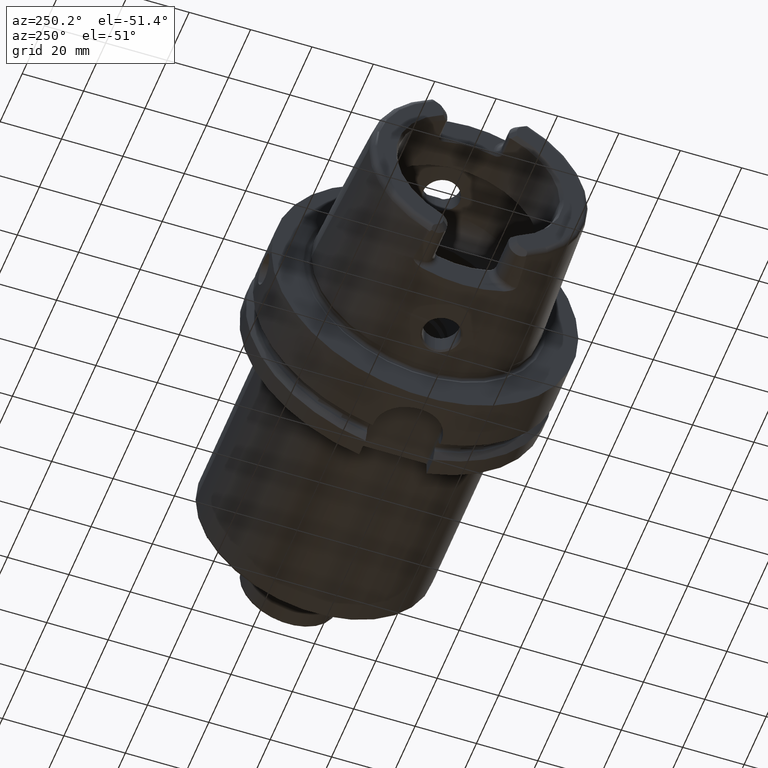
[diagram: clean part render]
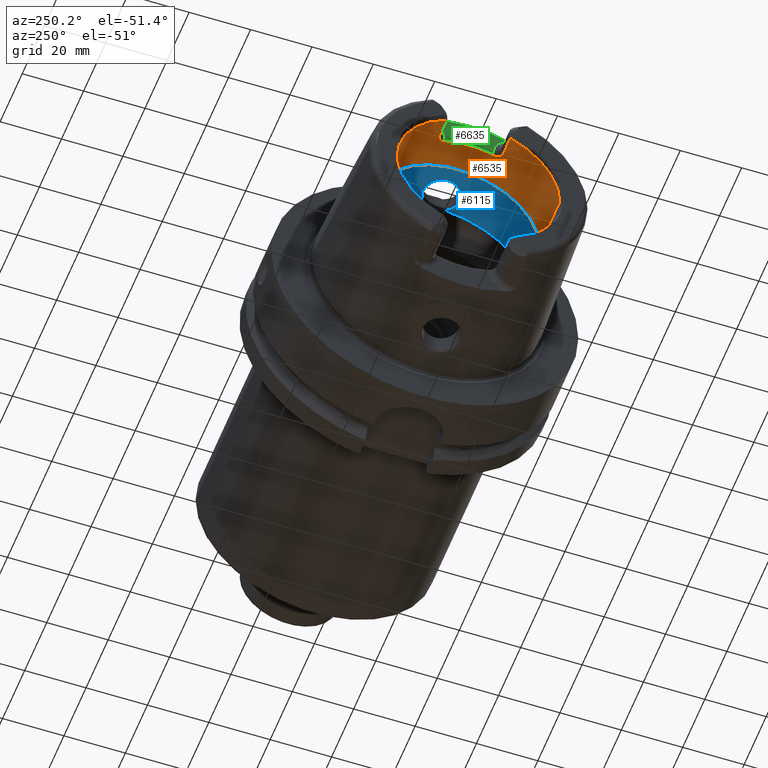
[diagram: same view with three faces highlighted in distinct colors, each labeled with its STEP entity id]
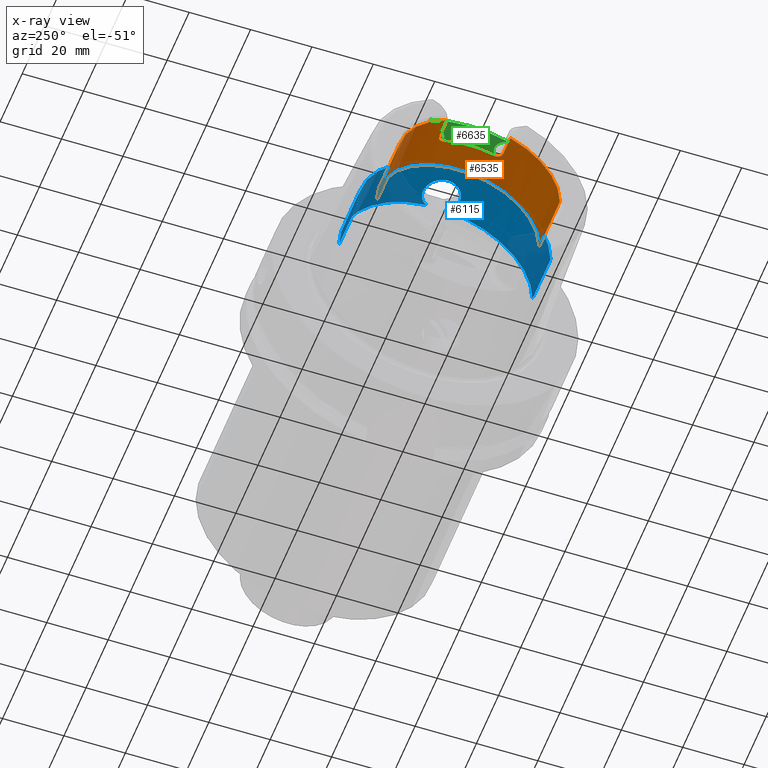
[diagram: x-ray of the same camera — body ghosted, the three highlighted faces saturated]
A machine part, auxiliary view with three faces highlighted in distinct colors.
The next image is the same camera in x-ray (body ghosted, the three faces saturated) — at least one of them is partly hidden behind the body in this view.
Their STEP definitions:

[orange] entity #6535 — the highlighted cylindrical surface (partial cylindrical patch) has radius 26.5 mm, axis along (1, 0, 0).
#165=CARTESIAN_POINT('',(-4.85E1,1.051E1,2.432673220965E1));
#167=CARTESIAN_POINT('',(-4.85E1,0.E0,0.E0));
#168=DIRECTION('',(1.E0,0.E0,0.E0));
#169=DIRECTION('',(0.E0,1.E0,0.E0));
#170=AXIS2_PLACEMENT_3D('',#167,#168,#169);
#187=CARTESIAN_POINT('',(-4.85E1,0.E0,0.E0));
#188=DIRECTION('',(1.E0,0.E0,0.E0));
#189=DIRECTION('',(0.E0,-3.966037735849E-1,9.179898947038E-1));
#190=AXIS2_PLACEMENT_3D('',#187,#188,#189);
#192=CARTESIAN_POINT('',(-4.85E1,-1.051E1,2.432673220965E1));
#513=DIRECTION('',(-1.E0,0.E0,0.E0));
#514=VECTOR('',#513,1.849662432703E1);
#515=CARTESIAN_POINT('',(-3.000337567297E1,2.65E1,0.E0));
#516=LINE('',#515,#514);
#522=DIRECTION('',(-1.E0,0.E0,0.E0));
#523=VECTOR('',#522,1.849662432703E1);
#524=CARTESIAN_POINT('',(-3.000337567297E1,-2.65E1,0.E0));
#525=LINE('',#524,#523);
#2610=DIRECTION('',(1.E0,0.E0,0.E0));
#2611=VECTOR('',#2610,6.380229667746E0);
#2612=CARTESIAN_POINT('',(-4.838022966775E1,1.039022966775E1,2.437812805470E1));
#2613=LINE('',#2612,#2611);
#2614=CARTESIAN_POINT('',(-3.971132486541E1,8.01E0,2.526044140549E1));
#2615=CARTESIAN_POINT('',(-3.970878365387E1,8.120563234658E0,2.522538218006E1));
#2616=CARTESIAN_POINT('',(-3.971906599640E1,8.340498761E0,2.515406323082E1));
#2617=CARTESIAN_POINT('',(-3.978267622202E1,8.672586520936E0,2.504149237513E1));
#2618=CARTESIAN_POINT('',(-3.989268945815E1,8.989467647893E0,2.492938353432E1));
#2619=CARTESIAN_POINT('',(-4.004052322956E1,9.277750297847E0,2.482340953473E1));
#2620=CARTESIAN_POINT('',(-4.022199090024E1,9.537479373845E0,2.472468297046E1));
#2621=CARTESIAN_POINT('',(-4.043924040036E1,9.773195748073E0,2.463237051391E1));
#2622=CARTESIAN_POINT('',(-4.069196362011E1,9.980705213938E0,2.454892857931E1));
#2623=CARTESIAN_POINT('',(-4.098453186625E1,1.015759575717E1,2.447617541728E1));
#2624=CARTESIAN_POINT('',(-4.132143240488E1,1.029570459017E1,2.441829554688E1));
#2625=CARTESIAN_POINT('',(-4.167918985613E1,1.037618705973E1,2.438412368561E1));
#2626=CARTESIAN_POINT('',(-4.189481839478E1,1.039022966775E1,2.437812805470E1));
#2627=CARTESIAN_POINT('',(-4.2E1,1.039022966775E1,2.437812805470E1));
#2629=CARTESIAN_POINT('',(-3.971132486541E1,-8.01E0,2.526044140549E1));
#2630=CARTESIAN_POINT('',(-3.971132486541E1,-7.271271578955E0,
2.549468967366E1));
#2631=CARTESIAN_POINT('',(-3.971132486546E1,-5.773250992792E0,
2.589833317849E1));
#2632=CARTESIAN_POINT('',(-3.971132486544E1,-3.481810319461E0,
2.630458298809E1));
#2633=CARTESIAN_POINT('',(-3.971132486544E1,-1.163586982585E0,
2.650849211583E1));
#2634=CARTESIAN_POINT('',(-3.971132486544E1,1.163586982585E0,2.650849211583E1));
#2635=CARTESIAN_POINT('',(-3.971132486544E1,3.481810319461E0,2.630458298809E1));
#2636=CARTESIAN_POINT('',(-3.971132486546E1,5.773250992791E0,2.589833317849E1));
#2637=CARTESIAN_POINT('',(-3.971132486541E1,7.271271578958E0,2.549468967366E1));
#2638=CARTESIAN_POINT('',(-3.971132486541E1,8.01E0,2.526044140549E1));
#2640=CARTESIAN_POINT('',(-4.2E1,-1.039022966775E1,2.437812805470E1));
#2641=CARTESIAN_POINT('',(-4.189375760304E1,-1.039022966775E1,
2.437812805470E1));
#2642=CARTESIAN_POINT('',(-4.167635124759E1,-1.037592175927E1,
2.438423721529E1));
#2643=CARTESIAN_POINT('',(-4.131623052643E1,-1.029415408513E1,
2.441895189414E1));
#2644=CARTESIAN_POINT('',(-4.097947032639E1,-1.015497495082E1,
2.447726388108E1));
#2645=CARTESIAN_POINT('',(-4.068903934051E1,-9.978495762119E0,
2.454982411868E1));
#2646=CARTESIAN_POINT('',(-4.043805179144E1,-9.771970406757E0,
2.463285308238E1));
#2647=CARTESIAN_POINT('',(-4.022178538202E1,-9.537157318169E0,
2.472480442904E1));
#2648=CARTESIAN_POINT('',(-4.004048499348E1,-9.277715471543E0,
2.482342368645E1));
#2649=CARTESIAN_POINT('',(-3.989237648633E1,-8.988811706632E0,
2.492962282131E1));
#2650=CARTESIAN_POINT('',(-3.978230284625E1,-8.671343229942E0,
2.504192722240E1));
#2651=CARTESIAN_POINT('',(-3.971884880625E1,-8.338547582645E0,
2.515470883480E1));
#2652=CARTESIAN_POINT('',(-3.970880260289E1,-8.119738798873E0,
2.522564360584E1));
#2653=CARTESIAN_POINT('',(-3.971132486541E1,-8.01E0,2.526044140549E1));
#2655=DIRECTION('',(1.E0,0.E0,0.E0));
#2656=VECTOR('',#2655,6.380229667746E0);
#2657=CARTESIAN_POINT('',(-4.838022966775E1,-1.039022966775E1,
2.437812805470E1));
#2658=LINE('',#2657,#2656);
#2659=CARTESIAN_POINT('',(-4.838022966775E1,-1.039022966775E1,
2.437812805470E1));
#2660=CARTESIAN_POINT('',(-4.842017594144E1,-1.043017594144E1,
2.436110250799E1));
#2661=CARTESIAN_POINT('',(-4.846009940760E1,-1.047009940760E1,
2.434397066250E1));
#2662=CARTESIAN_POINT('',(-4.85E1,-1.051E1,2.432673220965E1));
#2664=CARTESIAN_POINT('',(-3.000337567297E1,0.E0,0.E0));
#2665=DIRECTION('',(1.E0,0.E0,0.E0));
#2666=DIRECTION('',(0.E0,1.E0,0.E0));
#2667=AXIS2_PLACEMENT_3D('',#2664,#2665,#2666);
#2669=CARTESIAN_POINT('',(-4.85E1,1.051E1,2.432673220965E1));
#2670=CARTESIAN_POINT('',(-4.846009940760E1,1.047009940760E1,2.434397066250E1));
#2671=CARTESIAN_POINT('',(-4.842017594144E1,1.043017594144E1,2.436110250799E1));
#2672=CARTESIAN_POINT('',(-4.838022966775E1,1.039022966775E1,2.437812805470E1));
#2875=CARTESIAN_POINT('',(-3.000337567297E1,2.65E1,0.E0));
#2876=VERTEX_POINT('',#2875);
#2877=CARTESIAN_POINT('',(-4.85E1,2.65E1,0.E0));
#2878=VERTEX_POINT('',#2877);
#2887=CARTESIAN_POINT('',(-3.000337567297E1,-2.65E1,0.E0));
#2888=VERTEX_POINT('',#2887);
#2889=CARTESIAN_POINT('',(-4.85E1,-2.65E1,0.E0));
#2890=VERTEX_POINT('',#2889);
#2931=VERTEX_POINT('',#165);
#2946=VERTEX_POINT('',#192);
#2959=CARTESIAN_POINT('',(-4.2E1,1.039022966775E1,2.437812805470E1));
#2960=VERTEX_POINT('',#2959);
#2961=CARTESIAN_POINT('',(-3.971132486541E1,8.01E0,2.526044140549E1));
#2962=VERTEX_POINT('',#2961);
#2963=CARTESIAN_POINT('',(-4.2E1,-1.039022966775E1,2.437812805470E1));
#2964=VERTEX_POINT('',#2963);
#2965=CARTESIAN_POINT('',(-3.971132486541E1,-8.01E0,2.526044140549E1));
#2966=VERTEX_POINT('',#2965);
#2967=CARTESIAN_POINT('',(-4.838022966775E1,1.039022966775E1,2.437812805470E1));
#2968=VERTEX_POINT('',#2967);
#2969=CARTESIAN_POINT('',(-4.838022966775E1,-1.039022966775E1,
2.437812805470E1));
#2970=VERTEX_POINT('',#2969);
#6511=CARTESIAN_POINT('',(-5.3125E1,0.E0,0.E0));
#6512=DIRECTION('',(1.E0,0.E0,0.E0));
#6513=DIRECTION('',(0.E0,-1.E0,0.E0));
#6514=AXIS2_PLACEMENT_3D('',#6511,#6512,#6513);
#6515=CYLINDRICAL_SURFACE('',#6514,2.65E1);
#6516=ORIENTED_EDGE('',*,*,#3527,.T.);
#6518=ORIENTED_EDGE('',*,*,#6517,.F.);
#6520=ORIENTED_EDGE('',*,*,#6519,.F.);
#6522=ORIENTED_EDGE('',*,*,#6521,.F.);
#6524=ORIENTED_EDGE('',*,*,#6523,.F.);
#6526=ORIENTED_EDGE('',*,*,#6525,.T.);
#6527=ORIENTED_EDGE('',*,*,#3492,.T.);
#6528=ORIENTED_EDGE('',*,*,#3754,.F.);
#6529=ORIENTED_EDGE('',*,*,#6491,.F.);
#6530=ORIENTED_EDGE('',*,*,#3750,.T.);
#6531=ORIENTED_EDGE('',*,*,#3476,.T.);
#6532=ORIENTED_EDGE('',*,*,#3507,.T.);
#6533=EDGE_LOOP('',(#6516,#6518,#6520,#6522,#6524,#6526,#6527,#6528,#6529,#6530,
#6531,#6532));
#6534=FACE_OUTER_BOUND('',#6533,.F.);
#6535=ADVANCED_FACE('',(#6534),#6515,.F.);
#171=CIRCLE('',#170,2.65E1);
#191=CIRCLE('',#190,2.65E1);
#2628=B_SPLINE_CURVE_WITH_KNOTS('',3,(#2614,#2615,#2616,#2617,#2618,#2619,#2620,
#2621,#2622,#2623,#2624,#2625,#2626,#2627),.UNSPECIFIED.,.F.,.F.,(4,1,1,1,1,1,1,
1,1,1,1,4),(0.E0,9.090909090909E-2,1.818181818182E-1,2.727272727273E-1,
3.636363636364E-1,4.545454545455E-1,5.454545454545E-1,6.363636363636E-1,
7.272727272727E-1,8.181818181818E-1,9.090909090909E-1,1.E0),.UNSPECIFIED.);
#2639=B_SPLINE_CURVE_WITH_KNOTS('',3,(#2629,#2630,#2631,#2632,#2633,#2634,#2635,
#2636,#2637,#2638),.UNSPECIFIED.,.F.,.F.,(4,1,1,1,1,1,1,4),(0.E0,
1.428571428571E-1,2.857142857143E-1,4.285714285714E-1,5.714285714286E-1,
7.142857142857E-1,8.571428571429E-1,1.E0),.UNSPECIFIED.);
#2654=B_SPLINE_CURVE_WITH_KNOTS('',3,(#2640,#2641,#2642,#2643,#2644,#2645,#2646,
#2647,#2648,#2649,#2650,#2651,#2652,#2653),.UNSPECIFIED.,.F.,.F.,(4,1,1,1,1,1,1,
1,1,1,1,4),(0.E0,9.090909090909E-2,1.818181818182E-1,2.727272727273E-1,
3.636363636364E-1,4.545454545455E-1,5.454545454545E-1,6.363636363636E-1,
7.272727272727E-1,8.181818181818E-1,9.090909090909E-1,1.E0),.UNSPECIFIED.);
#2663=B_SPLINE_CURVE_WITH_KNOTS('',3,(#2659,#2660,#2661,#2662),.UNSPECIFIED.,
.F.,.F.,(4,4),(0.E0,1.E0),.UNSPECIFIED.);
#2668=CIRCLE('',#2667,2.65E1);
#2673=B_SPLINE_CURVE_WITH_KNOTS('',3,(#2669,#2670,#2671,#2672),.UNSPECIFIED.,
.F.,.F.,(4,4),(0.E0,1.E0),.UNSPECIFIED.);
#3476=EDGE_CURVE('',#2878,#2931,#171,.T.);
#3492=EDGE_CURVE('',#2946,#2890,#191,.T.);
#3507=EDGE_CURVE('',#2931,#2968,#2673,.T.);
#3527=EDGE_CURVE('',#2968,#2960,#2613,.T.);
#3750=EDGE_CURVE('',#2876,#2878,#516,.T.);
#3754=EDGE_CURVE('',#2888,#2890,#525,.T.);
#6491=EDGE_CURVE('',#2876,#2888,#2668,.T.);
#6517=EDGE_CURVE('',#2962,#2960,#2628,.T.);
#6519=EDGE_CURVE('',#2966,#2962,#2639,.T.);
#6521=EDGE_CURVE('',#2964,#2966,#2654,.T.);
#6523=EDGE_CURVE('',#2970,#2964,#2658,.T.);
#6525=EDGE_CURVE('',#2970,#2946,#2663,.T.);

[blue] entity #6115 — the highlighted cylindrical surface (partial cylindrical patch) has radius 31.5 mm, axis along (1, 0, 0).
#2203=CARTESIAN_POINT('',(-9.846794344809E0,3.073185883624E0,3.134972932139E1));
#2205=CARTESIAN_POINT('',(-9.846794344809E0,-3.073185883624E0,
3.134972932139E1));
#2219=CARTESIAN_POINT('',(-9.846794344809E0,3.073185883624E0,3.134972932139E1));
#2220=CARTESIAN_POINT('',(-9.979350610583E0,3.295460007053E0,3.132793998818E1));
#2221=CARTESIAN_POINT('',(-1.027063887730E1,3.719249728918E0,3.128166137702E1));
#2222=CARTESIAN_POINT('',(-1.079035808135E1,4.298920478732E0,3.120689190392E1));
#2223=CARTESIAN_POINT('',(-1.137898274965E1,4.805041081809E0,3.113254787077E1));
#2224=CARTESIAN_POINT('',(-1.202658779818E1,5.230450418473E0,3.106351678434E1));
#2225=CARTESIAN_POINT('',(-1.271973952812E1,5.567575114105E0,3.100453126817E1));
#2226=CARTESIAN_POINT('',(-1.345035493347E1,5.813488696578E0,3.095911024256E1));
#2227=CARTESIAN_POINT('',(-1.420764120587E1,5.964169161635E0,3.093027187856E1));
#2228=CARTESIAN_POINT('',(-1.497984446875E1,6.016521870398E0,3.092007259785E1));
#2229=CARTESIAN_POINT('',(-1.575309935594E1,5.969543750814E0,3.092922961197E1));
#2230=CARTESIAN_POINT('',(-1.652541066125E1,5.820717381311E0,3.095775345043E1));
#2231=CARTESIAN_POINT('',(-1.727341934717E1,5.571094163642E0,3.100391709528E1));
#2232=CARTESIAN_POINT('',(-1.797719195757E1,5.228690177102E0,3.106382935769E1));
#2233=CARTESIAN_POINT('',(-1.863207171596E1,4.797562142056E0,3.113375842146E1));
#2234=CARTESIAN_POINT('',(-1.923624043330E1,4.274224967480E0,3.121040427516E1));
#2235=CARTESIAN_POINT('',(-1.976613927382E1,3.673557002686E0,3.128721124755E1));
#2236=CARTESIAN_POINT('',(-2.020637808011E1,3.016563255921E0,3.135771603394E1));
#2237=CARTESIAN_POINT('',(-2.055582787998E1,2.311076998962E0,3.141795380196E1));
#2238=CARTESIAN_POINT('',(-2.081257397864E1,1.557663843048E0,3.146462805191E1));
#2239=CARTESIAN_POINT('',(-2.096662575255E1,7.779183163064E-1,
3.149361665994E1));
#2240=CARTESIAN_POINT('',(-2.1E1,2.599995876471E-1,3.15E1));
#2241=CARTESIAN_POINT('',(-2.1E1,0.E0,3.15E1));
#2243=CARTESIAN_POINT('',(-9.846794344809E0,0.E0,0.E0));
#2244=DIRECTION('',(1.E0,0.E0,0.E0));
#2245=DIRECTION('',(0.E0,1.E0,0.E0));
#2246=AXIS2_PLACEMENT_3D('',#2243,#2244,#2245);
#2248=CARTESIAN_POINT('',(-9.846794344809E0,0.E0,0.E0));
#2249=DIRECTION('',(1.E0,0.E0,0.E0));
#2250=DIRECTION('',(0.E0,-9.756145662299E-2,9.952295022665E-1));
#2251=AXIS2_PLACEMENT_3D('',#2248,#2249,#2250);
#2253=CARTESIAN_POINT('',(-2.1E1,0.E0,3.15E1));
#2254=CARTESIAN_POINT('',(-2.1E1,-2.571227322628E-1,3.15E1));
#2255=CARTESIAN_POINT('',(-2.096736472421E1,-7.693984126219E-1,
3.149375838501E1));
#2256=CARTESIAN_POINT('',(-2.081659080202E1,-1.541049857093E0,
3.146537963405E1));
#2257=CARTESIAN_POINT('',(-2.056550243220E1,-2.286682308644E0,
3.141968549161E1));
#2258=CARTESIAN_POINT('',(-2.022340587255E1,-2.986151195866E0,
3.136058293097E1));
#2259=CARTESIAN_POINT('',(-1.979326828629E1,-3.637340617479E0,
3.129140992251E1));
#2260=CARTESIAN_POINT('',(-1.927478905529E1,-4.235071698102E0,
3.121573223434E1));
#2261=CARTESIAN_POINT('',(-1.868247740736E1,-4.758599460883E0,
3.113974969594E1));
#2262=CARTESIAN_POINT('',(-1.803686661027E1,-5.194005287447E0,
3.106967109408E1));
#2263=CARTESIAN_POINT('',(-1.734161583992E1,-5.542612510908E0,
3.100904668501E1));
#2264=CARTESIAN_POINT('',(-1.659831672384E1,-5.801097428712E0,
3.096145823760E1));
#2265=CARTESIAN_POINT('',(-1.582796267308E1,-5.959654019058E0,
3.093114785940E1));
#2266=CARTESIAN_POINT('',(-1.505461105168E1,-6.016295452388E0,
3.092011677740E1));
#2267=CARTESIAN_POINT('',(-1.428037054876E1,-5.973681036842E0,
3.092842594800E1));
#2268=CARTESIAN_POINT('',(-1.350797364848E1,-5.829331845562E0,
3.095612333536E1));
#2269=CARTESIAN_POINT('',(-1.275967231567E1,-5.584336729774E0,
3.100151619127E1));
#2270=CARTESIAN_POINT('',(-1.205825931241E1,-5.248465876117E0,
3.106046672590E1));
#2271=CARTESIAN_POINT('',(-1.140515180586E1,-4.825059400574E0,
3.112945635419E1));
#2272=CARTESIAN_POINT('',(-1.080442776173E1,-4.313579447853E0,
3.120492076547E1));
#2273=CARTESIAN_POINT('',(-1.027427619122E1,-3.724621952008E0,
3.128107616940E1));
#2274=CARTESIAN_POINT('',(-9.980265351482E0,-3.296993870656E0,
3.132778962490E1));
#2275=CARTESIAN_POINT('',(-9.846794344809E0,-3.073185883624E0,
3.134972932139E1));
#2330=DIRECTION('',(-1.E0,0.E0,0.E0));
#2331=VECTOR('',#2330,1.640380457843E1);
#2332=CARTESIAN_POINT('',(-9.846794344809E0,-3.15E1,0.E0));
#2333=LINE('',#2332,#2331);
#2334=DIRECTION('',(-1.E0,0.E0,0.E0));
#2335=VECTOR('',#2334,1.640380457843E1);
#2336=CARTESIAN_POINT('',(-9.846794344809E0,3.15E1,0.E0));
#2337=LINE('',#2336,#2335);
#2587=CARTESIAN_POINT('',(-2.625059892324E1,0.E0,0.E0));
#2588=DIRECTION('',(1.E0,0.E0,0.E0));
#2589=DIRECTION('',(0.E0,1.E0,0.E0));
#2590=AXIS2_PLACEMENT_3D('',#2587,#2588,#2589);
#2869=CARTESIAN_POINT('',(-9.846794344809E0,3.15E1,0.E0));
#2870=VERTEX_POINT('',#2869);
#2871=CARTESIAN_POINT('',(-2.625059892324E1,3.15E1,0.E0));
#2872=VERTEX_POINT('',#2871);
#2881=CARTESIAN_POINT('',(-9.846794344809E0,-3.15E1,0.E0));
#2882=VERTEX_POINT('',#2881);
#2883=CARTESIAN_POINT('',(-2.625059892324E1,-3.15E1,0.E0));
#2884=VERTEX_POINT('',#2883);
#3049=VERTEX_POINT('',#2203);
#3050=VERTEX_POINT('',#2205);
#3051=VERTEX_POINT('',#2241);
#6098=CARTESIAN_POINT('',(-5.3125E1,0.E0,0.E0));
#6099=DIRECTION('',(1.E0,0.E0,0.E0));
#6100=DIRECTION('',(0.E0,-1.E0,0.E0));
#6101=AXIS2_PLACEMENT_3D('',#6098,#6099,#6100);
#6102=CYLINDRICAL_SURFACE('',#6101,3.15E1);
#6103=ORIENTED_EDGE('',*,*,#6057,.F.);
#6104=ORIENTED_EDGE('',*,*,#6093,.F.);
#6106=ORIENTED_EDGE('',*,*,#6105,.T.);
#6108=ORIENTED_EDGE('',*,*,#6107,.T.);
#6110=ORIENTED_EDGE('',*,*,#6109,.F.);
#6111=ORIENTED_EDGE('',*,*,#6085,.F.);
#6112=ORIENTED_EDGE('',*,*,#5779,.F.);
#6113=EDGE_LOOP('',(#6103,#6104,#6106,#6108,#6110,#6111,#6112));
#6114=FACE_OUTER_BOUND('',#6113,.F.);
#6115=ADVANCED_FACE('',(#6114),#6102,.F.);
#2242=B_SPLINE_CURVE_WITH_KNOTS('',3,(#2219,#2220,#2221,#2222,#2223,#2224,#2225,
#2226,#2227,#2228,#2229,#2230,#2231,#2232,#2233,#2234,#2235,#2236,#2237,#2238,
#2239,#2240,#2241),.UNSPECIFIED.,.F.,.F.,(4,1,1,1,1,1,1,1,1,1,1,1,1,1,1,1,1,1,1,
1,4),(0.E0,5.E-2,1.E-1,1.5E-1,2.E-1,2.5E-1,3.E-1,3.5E-1,4.E-1,4.5E-1,5.E-1,
5.5E-1,6.E-1,6.5E-1,7.E-1,7.5E-1,8.E-1,8.5E-1,9.E-1,9.5E-1,1.E0),.UNSPECIFIED.);
#2247=CIRCLE('',#2246,3.15E1);
#2252=CIRCLE('',#2251,3.15E1);
#2276=B_SPLINE_CURVE_WITH_KNOTS('',3,(#2253,#2254,#2255,#2256,#2257,#2258,#2259,
#2260,#2261,#2262,#2263,#2264,#2265,#2266,#2267,#2268,#2269,#2270,#2271,#2272,
#2273,#2274,#2275),.UNSPECIFIED.,.F.,.F.,(4,1,1,1,1,1,1,1,1,1,1,1,1,1,1,1,1,1,1,
1,4),(0.E0,5.E-2,1.E-1,1.5E-1,2.E-1,2.5E-1,3.E-1,3.5E-1,4.E-1,4.5E-1,5.E-1,
5.5E-1,6.E-1,6.5E-1,7.E-1,7.5E-1,8.E-1,8.5E-1,9.E-1,9.5E-1,1.E0),.UNSPECIFIED.);
#2591=CIRCLE('',#2590,3.15E1);
#5779=EDGE_CURVE('',#3051,#3050,#2276,.T.);
#6057=EDGE_CURVE('',#3049,#3051,#2242,.T.);
#6085=EDGE_CURVE('',#3050,#2882,#2252,.T.);
#6093=EDGE_CURVE('',#2870,#3049,#2247,.T.);
#6105=EDGE_CURVE('',#2870,#2872,#2337,.T.);
#6107=EDGE_CURVE('',#2872,#2884,#2591,.T.);
#6109=EDGE_CURVE('',#2882,#2884,#2333,.T.);

[green] entity #6635 — the highlighted planar face has unit normal (-1, 0, 0).
#9=CARTESIAN_POINT('',(-4.E1,0.E0,0.E0));
#10=DIRECTION('',(1.E0,0.E0,0.E0));
#11=DIRECTION('',(0.E0,3.574556786365E-1,9.339301032789E-1));
#12=AXIS2_PLACEMENT_3D('',#9,#10,#11);
#2682=DIRECTION('',(0.E0,5.174062213620E-12,1.E0));
#2683=VECTOR('',#2682,1.199558594508E0);
#2684=CARTESIAN_POINT('',(-4.E1,8.009999999994E0,2.576044140549E1));
#2685=LINE('',#2684,#2683);
#2686=CARTESIAN_POINT('',(-4.E1,1.501E1,2.696E1));
#2687=DIRECTION('',(-1.E0,0.E0,0.E0));
#2688=DIRECTION('',(0.E0,-1.E0,0.E0));
#2689=AXIS2_PLACEMENT_3D('',#2686,#2687,#2688);
#2691=CARTESIAN_POINT('',(-4.E1,-1.501E1,2.696E1));
#2692=DIRECTION('',(-1.E0,0.E0,0.E0));
#2693=DIRECTION('',(0.E0,3.057634963159E-1,9.521074962002E-1));
#2694=AXIS2_PLACEMENT_3D('',#2691,#2692,#2693);
#2696=DIRECTION('',(0.E0,6.866664706538E-12,-1.E0));
#2697=VECTOR('',#2696,1.199558594503E0);
#2698=CARTESIAN_POINT('',(-4.E1,-8.010000000001E0,2.695999999999E1));
#2699=LINE('',#2698,#2697);
#2700=CARTESIAN_POINT('',(-4.E1,8.009999999994E0,2.576044140549E1));
#2701=CARTESIAN_POINT('',(-4.E1,7.269616392493E0,2.599521452766E1));
#2702=CARTESIAN_POINT('',(-4.E1,5.774680607733E0,2.639793295020E1));
#2703=CARTESIAN_POINT('',(-4.E1,3.481759859025E0,2.680464578135E1));
#2704=CARTESIAN_POINT('',(-4.E1,1.163574268407E0,2.700848033442E1));
#2705=CARTESIAN_POINT('',(-4.E1,-1.163574229637E0,2.700848033529E1));
#2706=CARTESIAN_POINT('',(-4.E1,-3.481759771637E0,2.680464579107E1));
#2707=CARTESIAN_POINT('',(-4.E1,-5.774680487919E0,2.639793297771E1));
#2708=CARTESIAN_POINT('',(-4.E1,-7.269616343063E0,2.599521454333E1));
#2709=CARTESIAN_POINT('',(-4.E1,-8.009999999993E0,2.576044140549E1));
#2895=CARTESIAN_POINT('',(-4.E1,8.01E0,2.696E1));
#2897=VERTEX_POINT('',#2895);
#2899=CARTESIAN_POINT('',(-4.E1,-8.01E0,2.696E1));
#2901=VERTEX_POINT('',#2899);
#2903=CARTESIAN_POINT('',(-4.E1,1.286965552579E1,3.362475247340E1));
#2904=VERTEX_POINT('',#2903);
#2909=CARTESIAN_POINT('',(-4.E1,-1.286965552579E1,3.362475247340E1));
#2910=VERTEX_POINT('',#2909);
#2951=CARTESIAN_POINT('',(-4.E1,8.009999999994E0,2.576044140549E1));
#2952=VERTEX_POINT('',#2951);
#2953=CARTESIAN_POINT('',(-4.E1,-8.009999999993E0,2.576044140549E1));
#2954=VERTEX_POINT('',#2953);
#6620=CARTESIAN_POINT('',(-4.E1,0.E0,0.E0));
#6621=DIRECTION('',(-1.E0,0.E0,0.E0));
#6622=DIRECTION('',(0.E0,0.E0,1.E0));
#6623=AXIS2_PLACEMENT_3D('',#6620,#6621,#6622);
#6624=PLANE('',#6623);
#6625=ORIENTED_EDGE('',*,*,#3555,.T.);
#6626=ORIENTED_EDGE('',*,*,#3573,.T.);
#6627=ORIENTED_EDGE('',*,*,#3340,.T.);
#6629=ORIENTED_EDGE('',*,*,#6628,.T.);
#6631=ORIENTED_EDGE('',*,*,#6630,.T.);
#6632=ORIENTED_EDGE('',*,*,#6611,.F.);
#6633=EDGE_LOOP('',(#6625,#6626,#6627,#6629,#6631,#6632));
#6634=FACE_OUTER_BOUND('',#6633,.F.);
#6635=ADVANCED_FACE('',(#6634),#6624,.T.);
#13=CIRCLE('',#12,3.60035E1);
#2690=CIRCLE('',#2689,7.E0);
#2695=CIRCLE('',#2694,7.E0);
#2710=B_SPLINE_CURVE_WITH_KNOTS('',3,(#2700,#2701,#2702,#2703,#2704,#2705,#2706,
#2707,#2708,#2709),.UNSPECIFIED.,.F.,.F.,(4,1,1,1,1,1,1,4),(0.E0,
1.428571428571E-1,2.857142857143E-1,4.285714285714E-1,5.714285714286E-1,
7.142857142857E-1,8.571428571429E-1,1.E0),.UNSPECIFIED.);
#3340=EDGE_CURVE('',#2904,#2910,#13,.T.);
#3555=EDGE_CURVE('',#2952,#2897,#2685,.T.);
#3573=EDGE_CURVE('',#2897,#2904,#2690,.T.);
#6611=EDGE_CURVE('',#2952,#2954,#2710,.T.);
#6628=EDGE_CURVE('',#2910,#2901,#2695,.T.);
#6630=EDGE_CURVE('',#2901,#2954,#2699,.T.);